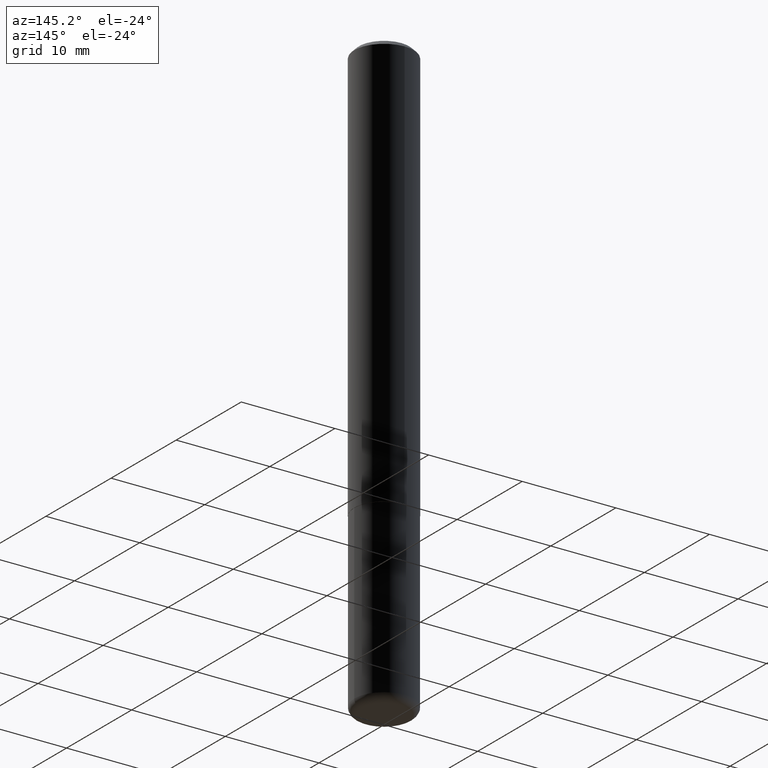
[diagram: clean part render]
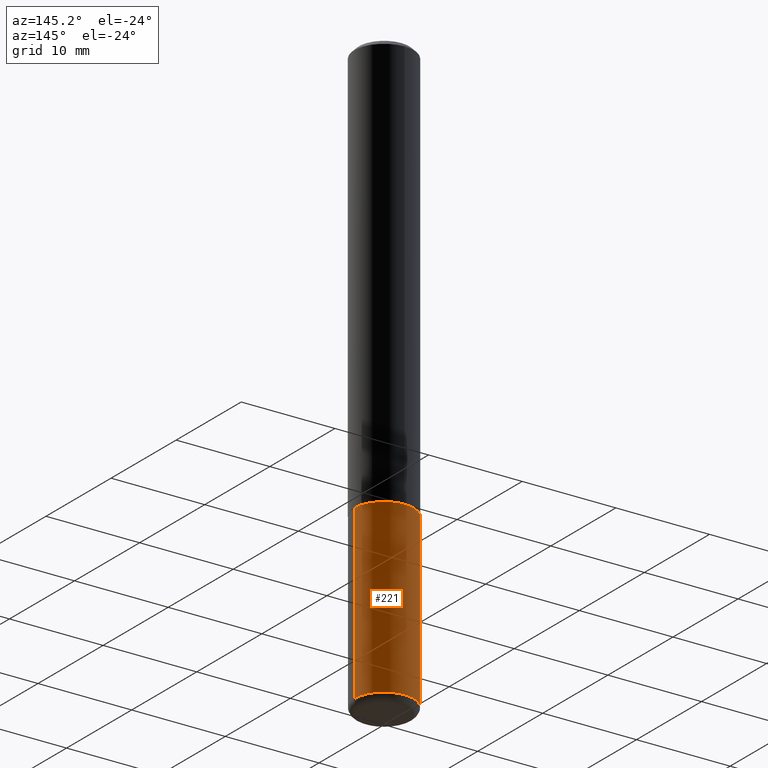
[diagram: same view with one face highlighted and labeled with its STEP entity id]
A machine part, auxiliary view. The second image highlights one B-rep face of the part: STEP entity #221.
In plain terms, the highlighted cylindrical surface (edge-blend (fillet) strip) has radius 3.175 mm, axis along (-0, 0, 1).
Its self-contained STEP definition (entity closure, byte-faithful):
#14 = AXIS2_PLACEMENT_3D ( 'NONE', #80, #274, #110 ) ;
#18 = VERTEX_POINT ( 'NONE', #120 ) ;
#19 = DIRECTION ( 'NONE',  ( 1.000000000000000000, -6.982962677686262766E-15, 0.000000000000000000 ) ) ;
#36 = ORIENTED_EDGE ( 'NONE', *, *, #227, .T. ) ;
#41 = CARTESIAN_POINT ( 'NONE',  ( -0.1250000000000000000, -6.478847205258913284E-15, -1.750000000000000222 ) ) ;
#75 = CIRCLE ( 'NONE', #124, 0.1250000000000000000 ) ;
#80 = CARTESIAN_POINT ( 'NONE',  ( 0.000000000000000000, 0.000000000000000000, 0.000000000000000000 ) ) ;
#97 = DIRECTION ( 'NONE',  ( -2.445468806185136877E-29, 3.491481338843145188E-15, 1.000000000000000000 ) ) ;
#104 = VERTEX_POINT ( 'NONE', #242 ) ;
#106 = ORIENTED_EDGE ( 'NONE', *, *, #366, .F. ) ;
#110 = DIRECTION ( 'NONE',  ( 1.000000000000000000, -6.982962677686266711E-15, 4.876176775795935793E-29 ) ) ;
#112 = ORIENTED_EDGE ( 'NONE', *, *, #277, .F. ) ;
#120 = CARTESIAN_POINT ( 'NONE',  ( 0.1250000000000001110, -9.496829241653354912E-15, -2.470000000000000195 ) ) ;
#124 = AXIS2_PLACEMENT_3D ( 'NONE', #249, #298, #173 ) ;
#133 = CIRCLE ( 'NONE', #208, 0.1250000000000000000 ) ;
#140 = DIRECTION ( 'NONE',  ( -2.445468806185136597E-29, 3.491481338843145583E-15, 1.000000000000000000 ) ) ;
#157 = EDGE_CURVE ( 'NONE', #296, #175, #197, .T. ) ;
#173 = DIRECTION ( 'NONE',  ( 1.000000000000000000, -6.982962677686270655E-15, 0.000000000000000000 ) ) ;
#175 = VERTEX_POINT ( 'NONE', #41 ) ;
#197 = LINE ( 'NONE', #359, #323 ) ;
#208 = AXIS2_PLACEMENT_3D ( 'NONE', #212, #140, #19 ) ;
#212 = CARTESIAN_POINT ( 'NONE',  ( 4.279570410823989044E-29, -6.110092342975505460E-15, -1.750000000000000222 ) ) ;
#221 = ADVANCED_FACE ( 'NONE', ( #398 ), #365, .T. ) ;
#227 = EDGE_CURVE ( 'NONE', #18, #296, #75, .T. ) ;
#242 = CARTESIAN_POINT ( 'NONE',  ( 0.1250000000000000000, -6.982962677686288010E-15, -1.750000000000000222 ) ) ;
#249 = CARTESIAN_POINT ( 'NONE',  ( 6.040307951277287977E-29, -8.623958906942569995E-15, -2.470000000000000195 ) ) ;
#258 = CARTESIAN_POINT ( 'NONE',  ( 0.1250000000000000000, -8.728703347107833388E-16, 6.095220969744919741E-30 ) ) ;
#274 = DIRECTION ( 'NONE',  ( -2.445468806185136597E-29, 3.491481338843145583E-15, 1.000000000000000000 ) ) ;
#277 = EDGE_CURVE ( 'NONE', #104, #175, #133, .T. ) ;
#281 = EDGE_LOOP ( 'NONE', ( #36, #390, #112, #106 ) ) ;
#296 = VERTEX_POINT ( 'NONE', #346 ) ;
#298 = DIRECTION ( 'NONE',  ( -2.445468806185136597E-29, 3.491481338843145583E-15, 1.000000000000000000 ) ) ;
#323 = VECTOR ( 'NONE', #329, 39.37007874015748143 ) ;
#329 = DIRECTION ( 'NONE',  ( -2.445468806185136877E-29, 3.491481338843145188E-15, 1.000000000000000000 ) ) ;
#346 = CARTESIAN_POINT ( 'NONE',  ( -0.1250000000000001110, -7.735780487242444763E-15, -2.470000000000000195 ) ) ;
#352 = VECTOR ( 'NONE', #97, 39.37007874015748143 ) ;
#359 = CARTESIAN_POINT ( 'NONE',  ( -0.1250000000000000000, 8.881784197001252323E-16, -6.148668862818632227E-30 ) ) ;
#365 = CYLINDRICAL_SURFACE ( 'NONE', #14, 0.1250000000000000000 ) ;
#366 = EDGE_CURVE ( 'NONE', #18, #104, #411, .T. ) ;
#390 = ORIENTED_EDGE ( 'NONE', *, *, #157, .T. ) ;
#398 = FACE_OUTER_BOUND ( 'NONE', #281, .T. ) ;
#411 = LINE ( 'NONE', #258, #352 ) ;